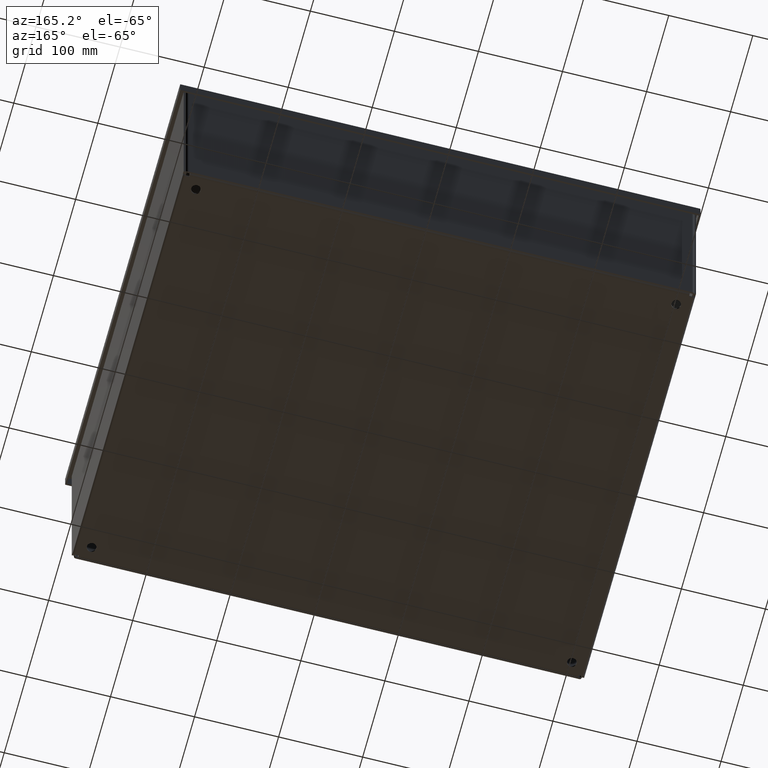
[diagram: clean part render]
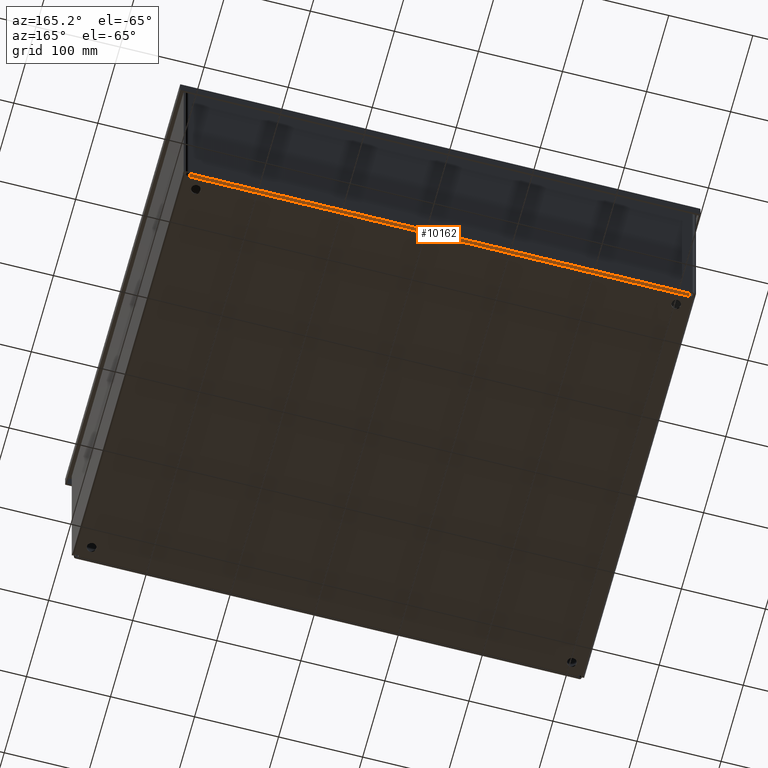
[diagram: same view with one face highlighted and labeled with its STEP entity id]
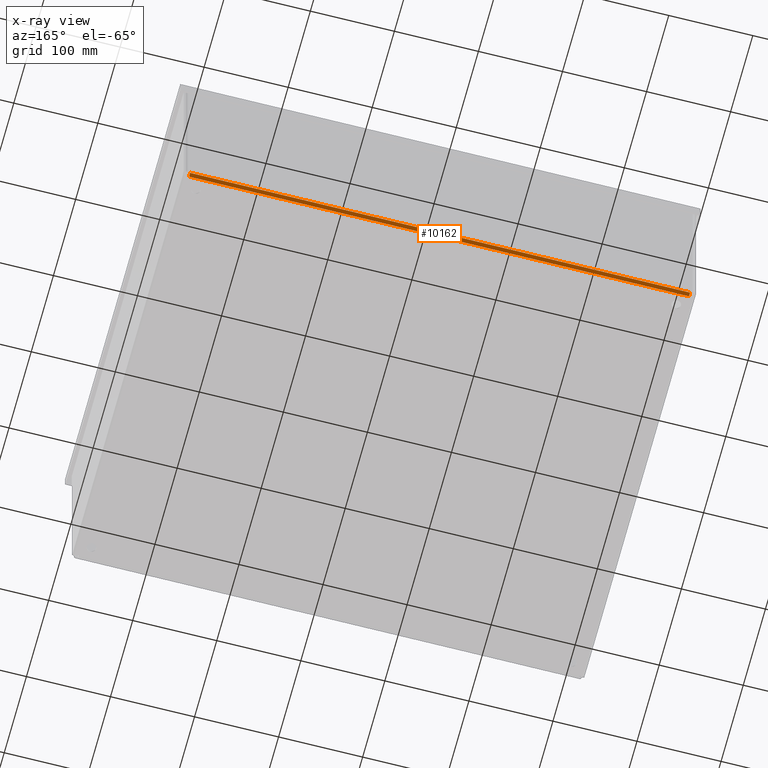
[diagram: x-ray of the same camera — body ghosted, the highlighted face saturated]
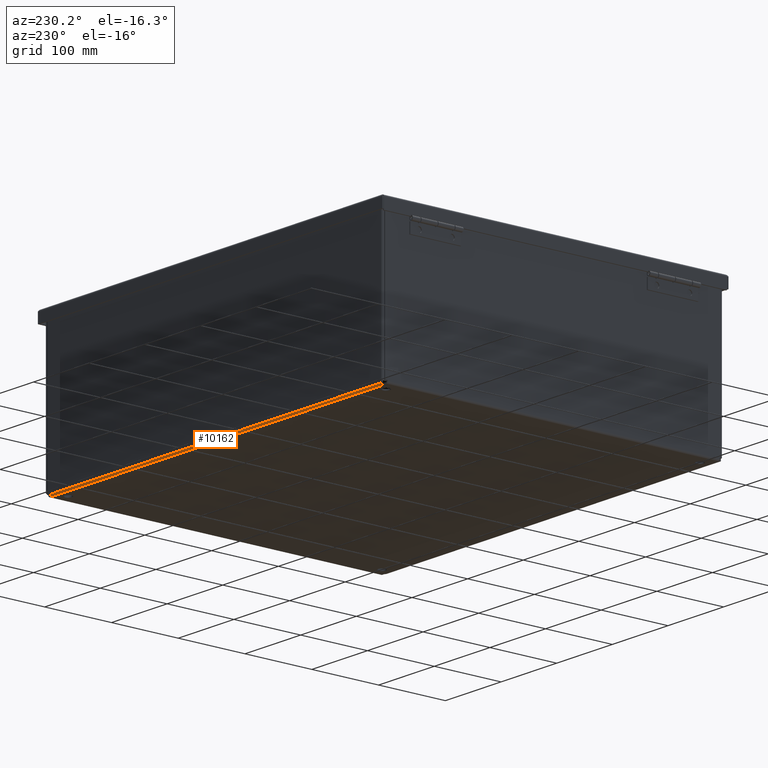
[diagram: same view with one face highlighted and labeled with its STEP entity id]
A machine part, auxiliary view. The second image highlights one B-rep face of the part: STEP entity #10162.
The next image is the same camera in x-ray: the body ghosted, the highlighted face saturated — about 0% of this face is hidden behind the body in this view.
A second angle (auxiliary view) of the same face is appended — the face is thin or edge-on in the first view.
In plain terms, the highlighted cylindrical surface (edge-blend (fillet) strip) has radius 3.4671 mm, axis along (1, 0, -0).
Its self-contained STEP definition (entity closure, byte-faithful):
#368=LINE('',#14921,#1297);
#369=LINE('',#14923,#1298);
#1297=VECTOR('',#11913,23.4202216703159);
#1298=VECTOR('',#11916,23.4202216703159);
#2653=FACE_OUTER_BOUND('',#3263,.T.);
#3263=EDGE_LOOP('',(#6724,#6725,#6726,#6727));
#3948=CIRCLE('',#10778,0.1365);
#3951=CIRCLE('',#10782,0.136500000000005);
#4345=VERTEX_POINT('',#14816);
#4347=VERTEX_POINT('',#14819);
#4350=VERTEX_POINT('',#14826);
#4352=VERTEX_POINT('',#14830);
#5240=EDGE_CURVE('',#4347,#4345,#3948,.T.);
#5246=EDGE_CURVE('',#4350,#4352,#3951,.T.);
#5289=EDGE_CURVE('',#4350,#4345,#368,.T.);
#5290=EDGE_CURVE('',#4347,#4352,#369,.T.);
#6724=ORIENTED_EDGE('',*,*,#5246,.T.);
#6725=ORIENTED_EDGE('',*,*,#5290,.F.);
#6726=ORIENTED_EDGE('',*,*,#5240,.T.);
#6727=ORIENTED_EDGE('',*,*,#5289,.F.);
#9486=CYLINDRICAL_SURFACE('',#10797,0.136499999999616);
#10162=ADVANCED_FACE('',(#2653),#9486,.T.);
#10778=AXIS2_PLACEMENT_3D('',#14820,#11830,#11831);
#10782=AXIS2_PLACEMENT_3D('',#14832,#11841,#11842);
#10797=AXIS2_PLACEMENT_3D('',#14922,#11914,#11915);
#11830=DIRECTION('center_axis',(1.,2.32944850343185E-16,-7.73630498916948E-33));
#11831=DIRECTION('ref_axis',(0.,-3.85284630737212E-12,-1.));
#11841=DIRECTION('center_axis',(-1.,-2.32944850343185E-16,7.73630498916948E-33));
#11842=DIRECTION('ref_axis',(0.,1.,-3.20216614641954E-15));
#11913=DIRECTION('',(-1.,-2.31731495300198E-16,4.60965955762983E-32));
#11914=DIRECTION('center_axis',(1.,2.32944850343185E-16,-7.73630498916948E-33));
#11915=DIRECTION('ref_axis',(-5.02984833121046E-31,2.12603338258928E-15,
-1.));
#11916=DIRECTION('',(1.,2.3334131421881E-16,0.));
#14816=CARTESIAN_POINT('',(-11.7101108351579,9.92599999999999,0.136499999999999));
#14819=CARTESIAN_POINT('',(-11.7101108351579,9.78949999999967,0.));
#14820=CARTESIAN_POINT('Origin',(-11.7101108351579,9.78949999999999,0.1365));
#14826=CARTESIAN_POINT('',(11.7101108351579,9.92599999999999,0.136499999999999));
#14830=CARTESIAN_POINT('',(11.7101108351579,9.78949999999968,0.));
#14832=CARTESIAN_POINT('Origin',(11.7101108351579,9.7895,0.1365));
#14921=CARTESIAN_POINT('',(1.39737304428267E-15,9.92599999999999,0.136499999999999));
#14922=CARTESIAN_POINT('Origin',(2.79741234551221E-15,9.78949999999999,
0.1365));
#14923=CARTESIAN_POINT('',(-5.93175,9.7895,0.));